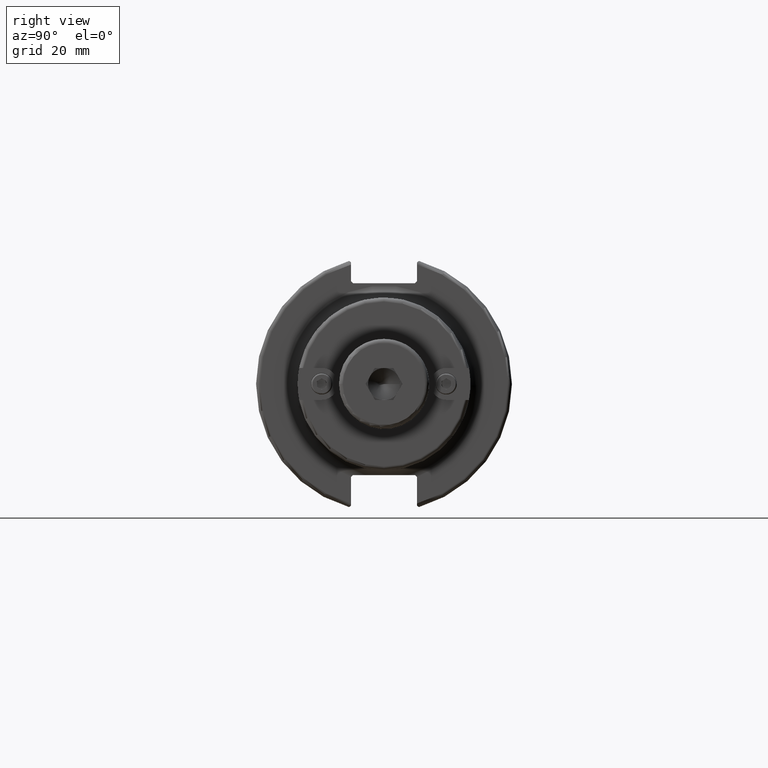
[diagram: clean part render]
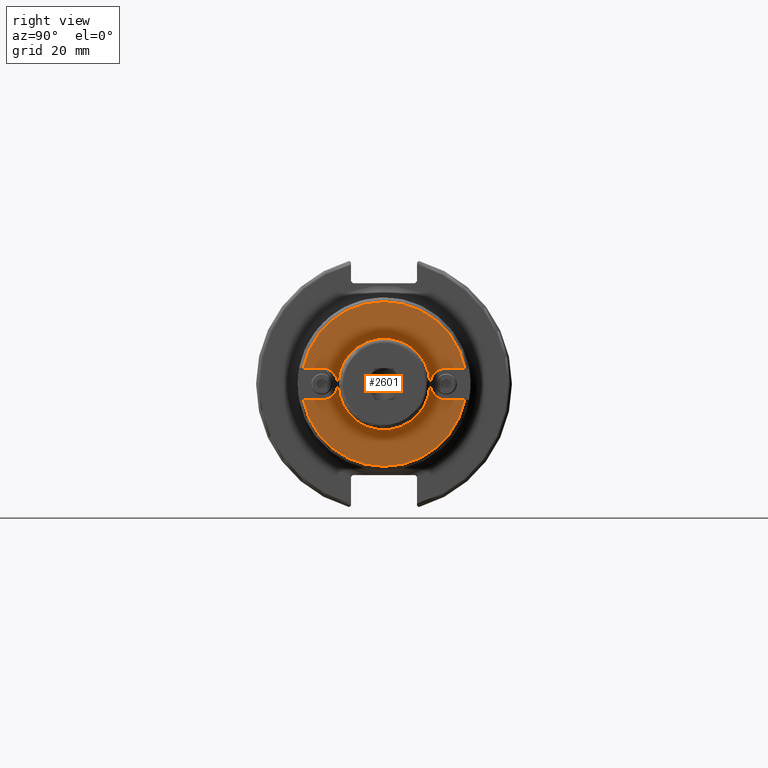
[diagram: same view with one face highlighted and labeled with its STEP entity id]
A machine part, right view. The second image highlights one B-rep face of the part: STEP entity #2601.
In plain terms, the highlighted planar face has unit normal (1, 0, 0).
Its self-contained STEP definition (entity closure, byte-faithful):
#218=FACE_BOUND('',#413,.T.);
#255=FACE_OUTER_BOUND('',#412,.T.);
#412=EDGE_LOOP('',(#1790,#1791,#1792,#1793,#1794,#1795,#1796,#1797));
#413=EDGE_LOOP('',(#1798));
#580=LINE('',#4009,#753);
#585=LINE('',#4045,#758);
#594=LINE('',#4105,#767);
#595=LINE('',#4107,#768);
#753=VECTOR('',#3187,10.);
#758=VECTOR('',#3204,10.);
#767=VECTOR('',#3245,10.);
#768=VECTOR('',#3248,10.);
#927=CIRCLE('',#2855,3.965);
#933=CIRCLE('',#2864,20.44);
#936=CIRCLE('',#2870,3.965);
#938=CIRCLE('',#2876,20.44);
#939=CIRCLE('',#2877,11.375);
#1069=VERTEX_POINT('',#4006);
#1070=VERTEX_POINT('',#4008);
#1073=VERTEX_POINT('',#4028);
#1075=VERTEX_POINT('',#4034);
#1082=VERTEX_POINT('',#4062);
#1086=VERTEX_POINT('',#4084);
#1087=VERTEX_POINT('',#4085);
#1090=VERTEX_POINT('',#4093);
#1091=VERTEX_POINT('',#4112);
#1332=EDGE_CURVE('',#1070,#1069,#580,.T.);
#1337=EDGE_CURVE('',#1069,#1073,#927,.T.);
#1341=EDGE_CURVE('',#1073,#1075,#585,.T.);
#1350=EDGE_CURVE('',#1070,#1082,#933,.T.);
#1356=EDGE_CURVE('',#1086,#1087,#936,.T.);
#1362=EDGE_CURVE('',#1090,#1086,#594,.T.);
#1363=EDGE_CURVE('',#1087,#1082,#595,.T.);
#1365=EDGE_CURVE('',#1090,#1075,#938,.T.);
#1366=EDGE_CURVE('',#1091,#1091,#939,.T.);
#1790=ORIENTED_EDGE('',*,*,#1341,.T.);
#1791=ORIENTED_EDGE('',*,*,#1365,.F.);
#1792=ORIENTED_EDGE('',*,*,#1362,.T.);
#1793=ORIENTED_EDGE('',*,*,#1356,.T.);
#1794=ORIENTED_EDGE('',*,*,#1363,.T.);
#1795=ORIENTED_EDGE('',*,*,#1350,.F.);
#1796=ORIENTED_EDGE('',*,*,#1332,.T.);
#1797=ORIENTED_EDGE('',*,*,#1337,.T.);
#1798=ORIENTED_EDGE('',*,*,#1366,.F.);
#2518=PLANE('',#2875);
#2601=ADVANCED_FACE('',(#255,#218),#2518,.T.);
#2855=AXIS2_PLACEMENT_3D('',#4029,#3198,#3199);
#2864=AXIS2_PLACEMENT_3D('',#4063,#3222,#3223);
#2870=AXIS2_PLACEMENT_3D('',#4086,#3236,#3237);
#2875=AXIS2_PLACEMENT_3D('',#4110,#3252,#3253);
#2876=AXIS2_PLACEMENT_3D('',#4111,#3254,#3255);
#2877=AXIS2_PLACEMENT_3D('',#4113,#3256,#3257);
#3187=DIRECTION('',(0.,1.,7.97617362282805E-17));
#3198=DIRECTION('center_axis',(-1.,0.,0.));
#3199=DIRECTION('ref_axis',(0.,-1.22464679914735E-16,-1.));
#3204=DIRECTION('',(0.,-1.,1.22464679914735E-16));
#3222=DIRECTION('center_axis',(-1.,0.,0.));
#3223=DIRECTION('ref_axis',(0.,-1.,1.83697019872103E-16));
#3236=DIRECTION('center_axis',(-1.,0.,0.));
#3237=DIRECTION('ref_axis',(0.,0.,1.));
#3245=DIRECTION('',(0.,-1.,-2.02226416143016E-16));
#3248=DIRECTION('',(0.,1.,0.));
#3252=DIRECTION('center_axis',(1.,0.,0.));
#3253=DIRECTION('ref_axis',(0.,0.,-1.));
#3254=DIRECTION('center_axis',(-1.,0.,0.));
#3255=DIRECTION('ref_axis',(0.,-1.,1.83697019872103E-16));
#3256=DIRECTION('center_axis',(1.,0.,0.));
#3257=DIRECTION('ref_axis',(0.,0.,-1.));
#4006=CARTESIAN_POINT('',(59.944,-15.46,3.965));
#4008=CARTESIAN_POINT('',(59.944,-20.0517424429898,3.965));
#4009=CARTESIAN_POINT('',(59.944,-7.53250000000001,3.965));
#4028=CARTESIAN_POINT('',(59.944,-15.46,-3.965));
#4029=CARTESIAN_POINT('Origin',(59.944,-15.46,1.89330395148181E-15));
#4034=CARTESIAN_POINT('',(59.944,-20.0517424429898,-3.965));
#4045=CARTESIAN_POINT('',(59.944,-2.04250000000001,-3.965));
#4062=CARTESIAN_POINT('',(59.944,20.0517424429898,3.965));
#4063=CARTESIAN_POINT('Origin',(59.944,0.,0.));
#4084=CARTESIAN_POINT('',(59.944,15.46,-3.965));
#4085=CARTESIAN_POINT('',(59.944,15.46,3.965));
#4086=CARTESIAN_POINT('Origin',(59.944,15.46,0.));
#4093=CARTESIAN_POINT('',(59.944,20.0517424429898,-3.965));
#4105=CARTESIAN_POINT('',(59.944,18.9075,-3.965));
#4107=CARTESIAN_POINT('',(59.944,13.4175,3.965));
#4110=CARTESIAN_POINT('Origin',(59.944,11.375,0.));
#4111=CARTESIAN_POINT('Origin',(59.944,0.,0.));
#4112=CARTESIAN_POINT('',(59.944,-11.375,-1.39303573403011E-15));
#4113=CARTESIAN_POINT('Origin',(59.944,0.,0.));